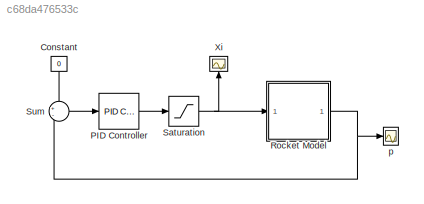
MODEL slx_c68da476533c
KIND model
CONFIG AbsTol = auto
CONFIG EnableMultiTasking = off
CONFIG FixedStep = auto
CONFIG MaxStep = auto
CONFIG MinStep = auto
CONFIG RelTol = 1e-3
CONFIG SampleTimeConstraint = Unconstrained
CONFIG Solver = VariableStepAuto
CONFIG SolverName = VariableStepAuto
CONFIG StartTime = 0.0
CONFIG StopTime = 10.0
BLOCK [Constant] Constant
  Value = 0
BLOCK [Reference] PID Controller  REF=simulink/Continuous/PID Controller
  Ports = [1, 1]
  SourceBlock = simulink/Continuous/PID Controller
  SourceProductBaseCode = SL
  SourceProductName = Simulink
  SourceType = PID 1dof
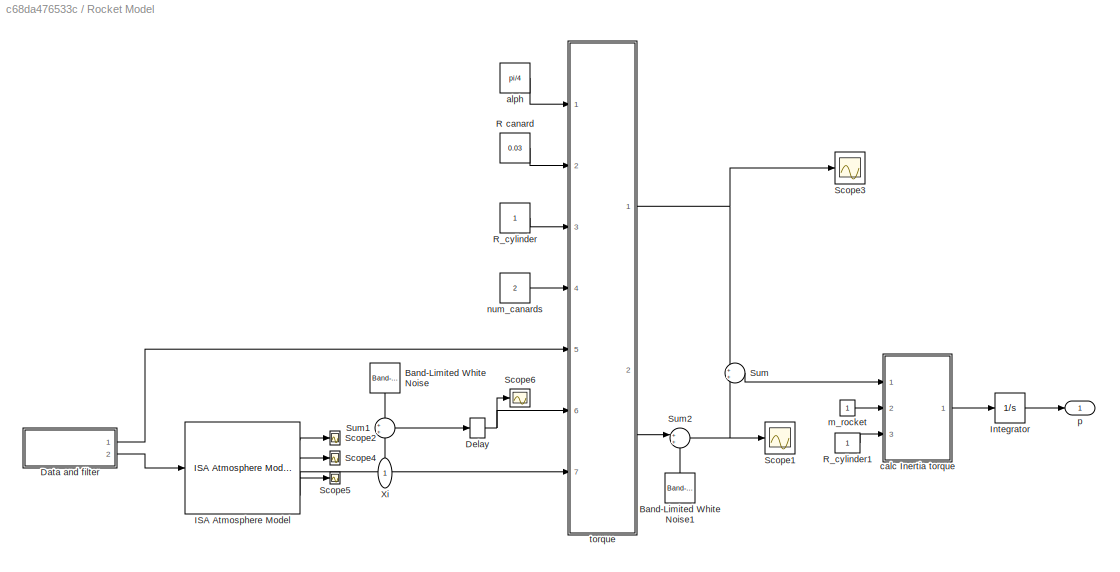
BLOCK [SubSystem] Rocket Model 
  Ports = [1, 1]
  RequestExecContextInheritance = off
  TreatAsAtomicUnit = on
  Variant = off
BLOCK [Reference] Rocket Model /Band-Limited White Noise  REF=simulink/Sources/Band-Limited
White Noise
  Ports = [0, 1]
  SourceBlock = simulink/Sources/Band-Limited\nWhite Noise
  SourceProductBaseCode = SL
  SourceProductName = Simulink
  SourceType = Band-Limited White Noise.
BLOCK [Reference] Rocket Model /Band-Limited White Noise1  REF=simulink/Sources/Band-Limited
White Noise
  Ports = [0, 1]
  SourceBlock = simulink/Sources/Band-Limited\nWhite Noise
  SourceProductBaseCode = SL
  SourceProductName = Simulink
  SourceType = Band-Limited White Noise.
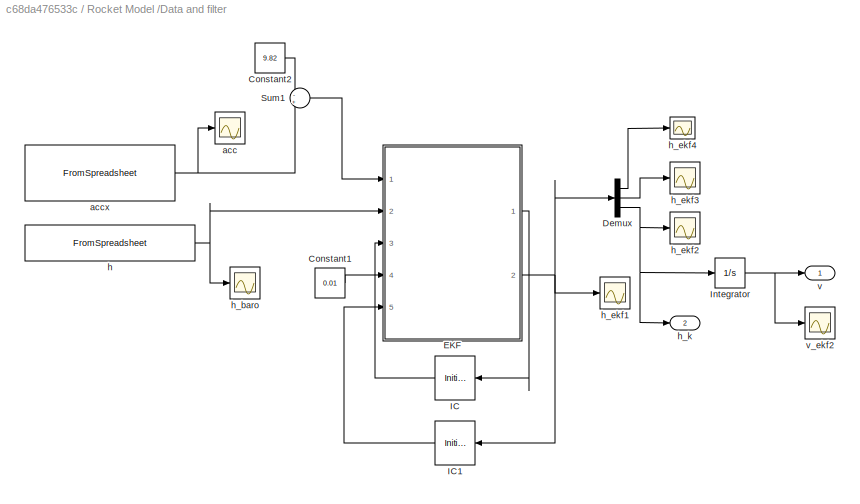
BLOCK [SubSystem] Rocket Model /Data and filter
  Ports = [0, 2]
  RequestExecContextInheritance = off
  TreatAsAtomicUnit = on
  Variant = off
BLOCK [Constant] Rocket Model /Data and filter/Constant1
  Value = 0.01
BLOCK [Constant] Rocket Model /Data and filter/Constant2
  Value = 9.82
BLOCK [Demux] Rocket Model /Data and filter/Demux
  DisplayOption = bar
  Outputs = 3
  Ports = [1, 3]
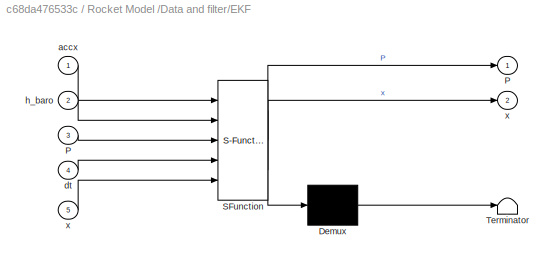
BLOCK [SubSystem] Rocket Model /Data and filter/EKF
  ErrorFcn = Stateflow.Translate.translate
  PermitHierarchicalResolution = ExplicitOnly
  Ports = [5, 2]
  RequestExecContextInheritance = off
  SFBlockType = MATLAB Function
  TreatAsAtomicUnit = on
  Variant = off
BLOCK [Demux] Rocket Model /Data and filter/EKF/ Demux 
  Outputs = 1
  Ports = [1, 1]
BLOCK [S-Function] Rocket Model /Data and filter/EKF/ SFunction 
  EnableBusSupport = on
  FunctionName = sf_sfun
  PortCounts = [5 3]
  Ports = [5, 3]
  SFcnIsStateOwnerBlock = off
  SFunctionDeploymentMode = off
  Tag = Stateflow S-Function Simulink_Modell 1
BLOCK [Terminator] Rocket Model /Data and filter/EKF/ Terminator 
BLOCK [Outport] Rocket Model /Data and filter/EKF/P
  IconDisplay = Port number
BLOCK [Inport] Rocket Model /Data and filter/EKF/P 
  IconDisplay = Port number
  Port = 3
BLOCK [Inport] Rocket Model /Data and filter/EKF/accx
  IconDisplay = Port number
BLOCK [Inport] Rocket Model /Data and filter/EKF/dt
  IconDisplay = Port number
  Port = 4
BLOCK [Inport] Rocket Model /Data and filter/EKF/h_baro
  IconDisplay = Port number
  Port = 2
BLOCK [Outport] Rocket Model /Data and filter/EKF/x
  IconDisplay = Port number
  Port = 2
BLOCK [Inport] Rocket Model /Data and filter/EKF/x 
  IconDisplay = Port number
  Port = 5
BLOCK [InitialCondition] Rocket Model /Data and filter/IC
  Value = [0.0311 0.0491 0.0086 ;0.0491 0.1544 0.2023 ;0.0086 0.2023 4.5247]
BLOCK [InitialCondition] Rocket Model /Data and filter/IC1
  Value = [1.85 0.17/0.01 20]
BLOCK [Integrator] Rocket Model /Data and filter/Integrator
  Ports = [1, 1]
BLOCK [Sum] Rocket Model /Data and filter/Sum1
  IconShape = round
  InputSameDT = off
  Inputs = -+
  OutDataTypeStr = Inherit: Inherit via internal rule
  Ports = [2, 1]
  SaturateOnIntegerOverflow = off
BLOCK [Scope] Rocket Model /Data and filter/acc
  NumInputPorts = 1
  Ports = [1]
  ScopeSpecificationString = Simulink.scopes.TimeScopeBlockCfg('CurrentConfiguration', extmgr.ConfigurationSet(extmgr.Configuration('Core','General UI',true),extmgr.Configuration('Core','Source UI',true),extmgr.Configuration('Sources','WiredSimulink',true,'DataLoggingVariableName','ScopeData5'),extmgr.Configuration('Visuals','Time Domain',true,'SerializedDisplays',{struct('MinYLimReal','-14.77097','MaxYLimReal','85.99601','YL...<+1369ch>
BLOCK [FromSpreadsheet] Rocket Model /Data and filter/accx
  FileName = <userpath>\Dropbox\HyEnD Electronics\Steuerung\Roll-Stabilization\Simulink-Modell\Data2.xlsx
  Ports = [0, 1]
  Range = A2:B979
  SheetName = acc
BLOCK [FromSpreadsheet] Rocket Model /Data and filter/h
  FileName = <userpath>\Dropbox\HyEnD Electronics\Steuerung\Roll-Stabilization\Simulink-Modell\Data2.xlsx
  Ports = [0, 1]
  Range = A2:B979
  SheetName = h
BLOCK [Scope] Rocket Model /Data and filter/h_baro
  NumInputPorts = 1
  Ports = [1]
  ScopeSpecificationString = Simulink.scopes.TimeScopeBlockCfg('CurrentConfiguration', extmgr.ConfigurationSet(extmgr.Configuration('Core','General UI',true),extmgr.Configuration('Core','Source UI',true),extmgr.Configuration('Sources','WiredSimulink',true,'DataLoggingVariableName','ScopeData6'),extmgr.Configuration('Visuals','Time Domain',true,'SerializedDisplays',{struct('MinYLimReal','-54.489','MaxYLimReal','508.901','YLabe...<+1358ch>
BLOCK [Scope] Rocket Model /Data and filter/h_ekf1
  NumInputPorts = 1
  Ports = [1]
  ScopeSpecificationString = Simulink.scopes.TimeScopeBlockCfg('CurrentConfiguration', extmgr.ConfigurationSet(extmgr.Configuration('Core','General UI',true),extmgr.Configuration('Core','Source UI',true),extmgr.Configuration('Sources','WiredSimulink',true,'DataLoggingVariableName','ScopeData7'),extmgr.Configuration('Visuals','Time Domain',true,'SerializedDisplays',{struct('MinYLimReal','-72.43503','MaxYLimReal','508.26568','Y...<+1423ch>
BLOCK [Scope] Rocket Model /Data and filter/h_ekf2
  NumInputPorts = 1
  Ports = [1]
  ScopeSpecificationString = Simulink.scopes.TimeScopeBlockCfg('CurrentConfiguration', extmgr.ConfigurationSet(extmgr.Configuration('Core','General UI',true),extmgr.Configuration('Core','Source UI',true),extmgr.Configuration('Sources','WiredSimulink',true,'DataLoggingVariableName','ScopeData8'),extmgr.Configuration('Visuals','Time Domain',true,'SerializedDisplays',{struct('MinYLimReal','-23.93289','MaxYLimReal','75.26964','YL...<+1372ch>
BLOCK [Scope] Rocket Model /Data and filter/h_ekf3
  NumInputPorts = 1
  Ports = [1]
  ScopeSpecificationString = Simulink.scopes.TimeScopeBlockCfg('CurrentConfiguration', extmgr.ConfigurationSet(extmgr.Configuration('Core','General UI',true),extmgr.Configuration('Core','Source UI',true),extmgr.Configuration('Sources','WiredSimulink',true,'DataLoggingVariableName','ScopeData9'),extmgr.Configuration('Visuals','Time Domain',true,'SerializedDisplays',{struct('MinYLimReal','-15.11958','MaxYLimReal','47.55154','YL...<+1372ch>
BLOCK [Scope] Rocket Model /Data and filter/h_ekf4
  NumInputPorts = 1
  Ports = [1]
  ScopeSpecificationString = Simulink.scopes.TimeScopeBlockCfg('CurrentConfiguration', extmgr.ConfigurationSet(extmgr.Configuration('Core','General UI',true),extmgr.Configuration('Core','Source UI',true),extmgr.Configuration('Sources','WiredSimulink',true,'DataLoggingVariableName','ScopeData10'),extmgr.Configuration('Visuals','Time Domain',true,'SerializedDisplays',{struct('MinYLimReal','-51.97359','MaxYLimReal','506.38165','...<+1377ch>
BLOCK [Outport] Rocket Model /Data and filter/h_k
  IconDisplay = Port number
  Port = 2
BLOCK [Outport] Rocket Model /Data and filter/v
  IconDisplay = Port number
BLOCK [Scope] Rocket Model /Data and filter/v_ekf2
  NumInputPorts = 1
  Ports = [1]
  ScopeSpecificationString = Simulink.scopes.TimeScopeBlockCfg('CurrentConfiguration', extmgr.ConfigurationSet(extmgr.Configuration('Core','General UI',true),extmgr.Configuration('Core','Source UI',true),extmgr.Configuration('Sources','WiredSimulink',true,'DataLoggingVariableName','ScopeData11'),extmgr.Configuration('Visuals','Time Domain',true,'SerializedDisplays',{struct('MinYLimReal','-12.29145','MaxYLimReal','105.08986','...<+1380ch>
BLOCK [TransportDelay] Rocket Model /Delay
  DelayTime = 0.00
  Ports = [1, 1]
BLOCK [Reference] Rocket Model /ISA Atmosphere Model  REF=aerolibatmos2/ISA Atmosphere Model
  Ports = [1, 4]
  SourceBlock = aerolibatmos2/ISA Atmosphere Model
  SourceProductBaseCode = AE
  SourceProductName = Aerospace Blockset
  SourceType = International Standard Atmosphere Model
BLOCK [Integrator] Rocket Model /Integrator
  Ports = [1, 1]
BLOCK [Constant] Rocket Model /R canard
  Value = 0.03
BLOCK [Constant] Rocket Model /R_cylinder
BLOCK [Constant] Rocket Model /R_cylinder1
BLOCK [Scope] Rocket Model /Scope1
  NumInputPorts = 1
  Ports = [1]
  ScopeSpecificationString = Simulink.scopes.TimeScopeBlockCfg('CurrentConfiguration', extmgr.ConfigurationSet(extmgr.Configuration('Core','General UI',true),extmgr.Configuration('Core','Source UI',true),extmgr.Configuration('Sources','WiredSimulink',true,'DataLoggingVariableName','ScopeData5'),extmgr.Configuration('Visuals','Time Domain',true,'SerializedDisplays',{struct('MinYLimReal','-33.99742','MaxYLimReal','286.22748','Y...<+1401ch>
BLOCK [Scope] Rocket Model /Scope2
  NumInputPorts = 1
  Ports = [1]
  ScopeSpecificationString = Simulink.scopes.TimeScopeBlockCfg('CurrentConfiguration', extmgr.ConfigurationSet(extmgr.Configuration('Core','General UI',true),extmgr.Configuration('Core','Source UI',true),extmgr.Configuration('Sources','WiredSimulink',true,'DataLoggingVariableName','ScopeData1'),extmgr.Configuration('Visuals','Time Domain',true,'SerializedDisplays',{struct('MinYLimReal','-6935.99049','MaxYLimReal','770.66561',...<+1394ch>
BLOCK [Scope] Rocket Model /Scope3
  NumInputPorts = 1
  Ports = [1]
  ScopeSpecificationString = Simulink.scopes.TimeScopeBlockCfg('CurrentConfiguration', extmgr.ConfigurationSet(extmgr.Configuration('Core','General UI',true),extmgr.Configuration('Core','Source UI',true),extmgr.Configuration('Sources','WiredSimulink',true,'DataLoggingVariableName','ScopeData4'),extmgr.Configuration('Visuals','Time Domain',true,'SerializedDisplays',{struct('MinYLimReal','-628.45899','MaxYLimReal','69.82878','Y...<+1386ch>
BLOCK [Scope] Rocket Model /Scope4
  NumInputPorts = 1
  Ports = [1]
  ScopeSpecificationString = Simulink.scopes.TimeScopeBlockCfg('CurrentConfiguration', extmgr.ConfigurationSet(extmgr.Configuration('Core','General UI',true),extmgr.Configuration('Core','Source UI',true),extmgr.Configuration('Sources','WiredSimulink',true,'DataLoggingVariableName','ScopeData2'),extmgr.Configuration('Visuals','Time Domain',true,'SerializedDisplays',{struct('MinYLimReal','-6935.99049','MaxYLimReal','770.66561',...<+1394ch>
BLOCK [Scope] Rocket Model /Scope5
  NumInputPorts = 1
  Ports = [1]
  ScopeSpecificationString = Simulink.scopes.TimeScopeBlockCfg('CurrentConfiguration', extmgr.ConfigurationSet(extmgr.Configuration('Core','General UI',true),extmgr.Configuration('Core','Source UI',true),extmgr.Configuration('Sources','WiredSimulink',true,'DataLoggingVariableName','ScopeData3'),extmgr.Configuration('Visuals','Time Domain',true,'SerializedDisplays',{struct('MinYLimReal','-6935.99049','MaxYLimReal','770.66561',...<+1394ch>
BLOCK [Scope] Rocket Model /Scope6
  NumInputPorts = 1
  Ports = [1]
  ScopeSpecificationString = Simulink.scopes.TimeScopeBlockCfg('CurrentConfiguration', extmgr.ConfigurationSet(extmgr.Configuration('Core','General UI',true),extmgr.Configuration('Core','Source UI',true),extmgr.Configuration('Sources','WiredSimulink',true,'DataLoggingVariableName','ScopeData4'),extmgr.Configuration('Visuals','Time Domain',true,'SerializedDisplays',{struct('MinYLimReal','-0.35149','MaxYLimReal','0.11982','YLab...<+1364ch>
BLOCK [Sum] Rocket Model /Sum
  IconShape = round
  InputSameDT = off
  OutDataTypeStr = Inherit: Inherit via internal rule
  Ports = [2, 1]
  SaturateOnIntegerOverflow = off
BLOCK [Sum] Rocket Model /Sum1
  IconShape = round
  InputSameDT = off
  OutDataTypeStr = Inherit: Inherit via internal rule
  Ports = [2, 1]
  SaturateOnIntegerOverflow = off
BLOCK [Sum] Rocket Model /Sum2
  IconShape = round
  InputSameDT = off
  OutDataTypeStr = Inherit: Inherit via internal rule
  Ports = [2, 1]
  SaturateOnIntegerOverflow = off
BLOCK [Inport] Rocket Model /Xi
  IconDisplay = Port number
BLOCK [Constant] Rocket Model /alph 
  Value = pi/4
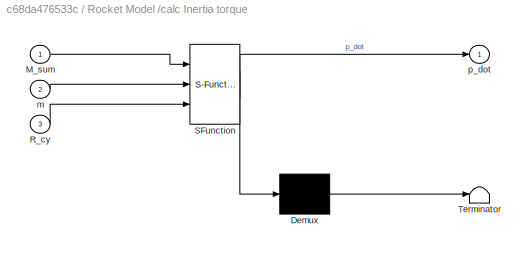
BLOCK [SubSystem] Rocket Model /calc Inertia torque
  ErrorFcn = Stateflow.Translate.translate
  PermitHierarchicalResolution = ExplicitOnly
  Ports = [3, 1]
  RequestExecContextInheritance = off
  SFBlockType = MATLAB Function
  TreatAsAtomicUnit = on
  Variant = off
BLOCK [Demux] Rocket Model /calc Inertia torque/ Demux 
  Outputs = 1
  Ports = [1, 1]
BLOCK [S-Function] Rocket Model /calc Inertia torque/ SFunction 
  EnableBusSupport = on
  FunctionName = sf_sfun
  PortCounts = [3 2]
  Ports = [3, 2]
  SFcnIsStateOwnerBlock = off
  SFunctionDeploymentMode = off
  Tag = Stateflow S-Function Simulink_Modell 2
BLOCK [Terminator] Rocket Model /calc Inertia torque/ Terminator 
BLOCK [Inport] Rocket Model /calc Inertia torque/M_sum
  IconDisplay = Port number
BLOCK [Inport] Rocket Model /calc Inertia torque/R_cy
  IconDisplay = Port number
  Port = 3
BLOCK [Inport] Rocket Model /calc Inertia torque/m
  IconDisplay = Port number
  Port = 2
BLOCK [Outport] Rocket Model /calc Inertia torque/p_dot
  IconDisplay = Port number
BLOCK [Constant] Rocket Model /m_rocket
BLOCK [Constant] Rocket Model /num_canards 
  Value = 2
BLOCK [Outport] Rocket Model /p
  IconDisplay = Port number
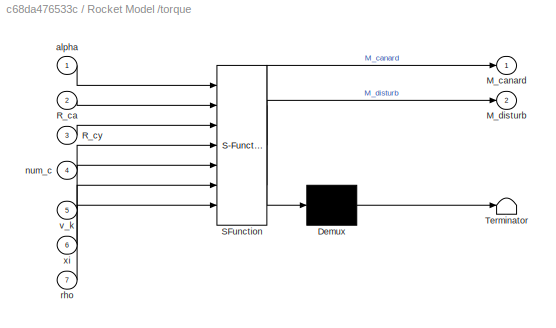
BLOCK [SubSystem] Rocket Model /torque
  ErrorFcn = Stateflow.Translate.translate
  PermitHierarchicalResolution = ExplicitOnly
  Ports = [7, 2]
  RequestExecContextInheritance = off
  SFBlockType = MATLAB Function
  TreatAsAtomicUnit = on
  Variant = off
BLOCK [Demux] Rocket Model /torque/ Demux 
  Outputs = 1
  Ports = [1, 1]
BLOCK [S-Function] Rocket Model /torque/ SFunction 
  EnableBusSupport = on
  FunctionName = sf_sfun
  PortCounts = [7 3]
  Ports = [7, 3]
  SFcnIsStateOwnerBlock = off
  SFunctionDeploymentMode = off
  Tag = Stateflow S-Function Simulink_Modell 4
BLOCK [Terminator] Rocket Model /torque/ Terminator 
BLOCK [Outport] Rocket Model /torque/M_canard
  IconDisplay = Port number
BLOCK [Outport] Rocket Model /torque/M_disturb
  IconDisplay = Port number
  Port = 2
BLOCK [Inport] Rocket Model /torque/R_ca
  IconDisplay = Port number
  Port = 2
BLOCK [Inport] Rocket Model /torque/R_cy
  IconDisplay = Port number
  Port = 3
BLOCK [Inport] Rocket Model /torque/alpha
  IconDisplay = Port number
BLOCK [Inport] Rocket Model /torque/num_c
  IconDisplay = Port number
  Port = 4
BLOCK [Inport] Rocket Model /torque/rho
  IconDisplay = Port number
  Port = 7
BLOCK [Inport] Rocket Model /torque/v_k
  IconDisplay = Port number
  Port = 5
BLOCK [Inport] Rocket Model /torque/xi
  IconDisplay = Port number
  Port = 6
BLOCK [Saturate] Saturation
  InputPortMap = u0
  LowerLimit = -pi/4
  Ports = [1, 1]
  UpperLimit = pi/4
BLOCK [Sum] Sum
  IconShape = round
  InputSameDT = off
  Inputs = +-
  OutDataTypeStr = Inherit: Inherit via internal rule
  Ports = [2, 1]
  SaturateOnIntegerOverflow = off
BLOCK [Scope] Xi
  NumInputPorts = 1
  Ports = [1]
  ScopeSpecificationString = Simulink.scopes.TimeScopeBlockCfg('CurrentConfiguration', extmgr.ConfigurationSet(extmgr.Configuration('Core','General UI',true),extmgr.Configuration('Core','Source UI',true),extmgr.Configuration('Sources','WiredSimulink',true,'DataLoggingVariableName','ScopeData1'),extmgr.Configuration('Visuals','Time Domain',true,'SerializedDisplays',{struct('MinYLimReal','-0.32973','MaxYLimReal','0.03664','YLab...<+1424ch>
BLOCK [Scope] p
  NumInputPorts = 1
  Ports = [1]
  ScopeSpecificationString = Simulink.scopes.TimeScopeBlockCfg('CurrentConfiguration', extmgr.ConfigurationSet(extmgr.Configuration('Core','General UI',true),extmgr.Configuration('Core','Source UI',true),extmgr.Configuration('Sources','WiredSimulink',true,'DataLoggingVariableName','ScopeData2'),extmgr.Configuration('Visuals','Time Domain',true,'SerializedDisplays',{struct('MinYLimReal','-16.87116','MaxYLimReal','38.52261','YL...<+1431ch>
LINE Constant:1 -> Sum:1
LINE PID Controller:1 -> Saturation:1
LINE Rocket Model /Band-Limited White Noise1:1 -> Rocket Model /Sum2:2
LINE Rocket Model /Band-Limited White Noise:1 -> Rocket Model /Sum1:1
LINE Rocket Model /Data and filter/Constant1:1 -> Rocket Model /Data and filter/EKF:4
LINE Rocket Model /Data and filter/Constant2:1 -> Rocket Model /Data and filter/Sum1:1
LINE Rocket Model /Data and filter/Demux:1 -> Rocket Model /Data and filter/h_ekf4:1
LINE Rocket Model /Data and filter/Demux:2 -> Rocket Model /Data and filter/h_ekf3:1
NET Rocket Model /Data and filter/Demux:3 -> Rocket Model /Data and filter/Integrator:1, Rocket Model /Data and filter/h_ekf2:1, Rocket Model /Data and filter/h_k:1
LINE Rocket Model /Data and filter/EKF:1 -> Rocket Model /Data and filter/IC:1
NET Rocket Model /Data and filter/EKF:2 -> Rocket Model /Data and filter/Demux:1, Rocket Model /Data and filter/IC1:1, Rocket Model /Data and filter/h_ekf1:1
LINE Rocket Model /Data and filter/IC1:1 -> Rocket Model /Data and filter/EKF:5
LINE Rocket Model /Data and filter/IC:1 -> Rocket Model /Data and filter/EKF:3
NET Rocket Model /Data and filter/Integrator:1 -> Rocket Model /Data and filter/v:1, Rocket Model /Data and filter/v_ekf2:1
LINE Rocket Model /Data and filter/Sum1:1 -> Rocket Model /Data and filter/EKF:1
NET Rocket Model /Data and filter/accx:1 -> Rocket Model /Data and filter/Sum1:2, Rocket Model /Data and filter/acc:1
NET Rocket Model /Data and filter/h:1 -> Rocket Model /Data and filter/EKF:2, Rocket Model /Data and filter/h_baro:1
LINE Rocket Model /Data and filter:1 -> Rocket Model /torque:5
LINE Rocket Model /Data and filter:2 -> Rocket Model /ISA Atmosphere Model:1
NET Rocket Model /Delay:1 -> Rocket Model /Scope6:1, Rocket Model /torque:6
LINE Rocket Model /ISA Atmosphere Model:1 -> Rocket Model /Scope2:1
LINE Rocket Model /ISA Atmosphere Model:2 -> Rocket Model /Scope4:1
LINE Rocket Model /ISA Atmosphere Model:3 -> Rocket Model /Scope5:1
LINE Rocket Model /ISA Atmosphere Model:4 -> Rocket Model /torque:7
LINE Rocket Model /Integrator:1 -> Rocket Model /p:1
LINE Rocket Model /R canard:1 -> Rocket Model /torque:2
LINE Rocket Model /R_cylinder1:1 -> Rocket Model /calc Inertia torque:3
LINE Rocket Model /R_cylinder:1 -> Rocket Model /torque:3
LINE Rocket Model /Sum1:1 -> Rocket Model /Delay:1
NET Rocket Model /Sum2:1 -> Rocket Model /Scope1:1, Rocket Model /Sum:2
LINE Rocket Model /Sum:1 -> Rocket Model /calc Inertia torque:1
LINE Rocket Model /Xi:1 -> Rocket Model /Sum1:2
LINE Rocket Model /alph :1 -> Rocket Model /torque:1
LINE Rocket Model /calc Inertia torque:1 -> Rocket Model /Integrator:1
LINE Rocket Model /m_rocket:1 -> Rocket Model /calc Inertia torque:2
LINE Rocket Model /num_canards :1 -> Rocket Model /torque:4
NET Rocket Model /torque:1 -> Rocket Model /Scope3:1, Rocket Model /Sum:1
LINE Rocket Model /torque:2 -> Rocket Model /Sum2:1
NET Rocket Model :1 -> Sum:2, p:1
NET Saturation:1 -> Rocket Model :1, Xi:1
LINE Sum:1 -> PID Controller:1
note: NET lines group one-source signal fan-out (src -> all destinations, sorted); 1:1 wires keep LINE
CHART Rocket Model
/Data and filter/EKF states=1 transitions=1
  STATE_LABEL 'eML_blk_kernel()'
  STATE_LABEL 'SCRIPT:\nfunction [P,x] = fcn(accx,h_baro,P,dt,x)\n%% Initialize\nsigma_baro= 1; %35.8229noise baro sensor;\nsigma_acc= 5;%0.0002 %0.0012 noise acc sensor; \nz = [h_baro accx]; \n% a=0;\n% v=0;\n% h=0;\n% x=[h;v;a]; %mean state vector %-------------\nI = eye(3);\nH= [1 0 0; 0 0 1];\nF = [1 dt 1/2*dt^2; 0 1 dt; 0 0 1]; % StateTransitionFcn: maps previous state to next state\n \n%P = [0.0311 0.0491 0.0086 ;0.0491...<+717ch>'
CHART Rocket Model
/calc Inertia torque states=1 transitions=1
  STATE_LABEL 'eML_blk_kernel()'
  STATE_LABEL 'SCRIPT:\nfunction p_dot = fcn(M_sum,m,R_cy)\nI = 0.5*m*R_cy^2; %inertia torque solid cylinder\np_dot = M_sum/I;\n'
CHART Rocket Model
/torque states=1 transitions=1
  STATE_LABEL 'eML_blk_kernel()'
  STATE_LABEL 'SCRIPT:\nfunction [M_canard,M_disturb] = fcn(alpha,R_ca,R_cy,num_c,v_k,xi,rho)\nH = tan(alpha) * R_ca;\n% fun_ca = @(r) (-H*r.^2/R_ca +H*r)*num_c/2*v_k^2*cos(xi)*sin(xi)*rho;\n%fun_ca integrated: \n\n%M_canard=(H*(R_ca^3-3*R_ca*R_cy^2+2*R_cy^3)/(6*R_ca))*num_c/2*v_k^2*cos(xi)*sin(xi)*rho; % old%wrong \n \nM_canard = -num_c*rho*v_k^2*sin(xi)*sin(xi)*tan(alpha)*(R_ca^3-3*R_ca*R_cy^2+2*R_cy^3)/6; %new buggy\n...<+140ch>'
